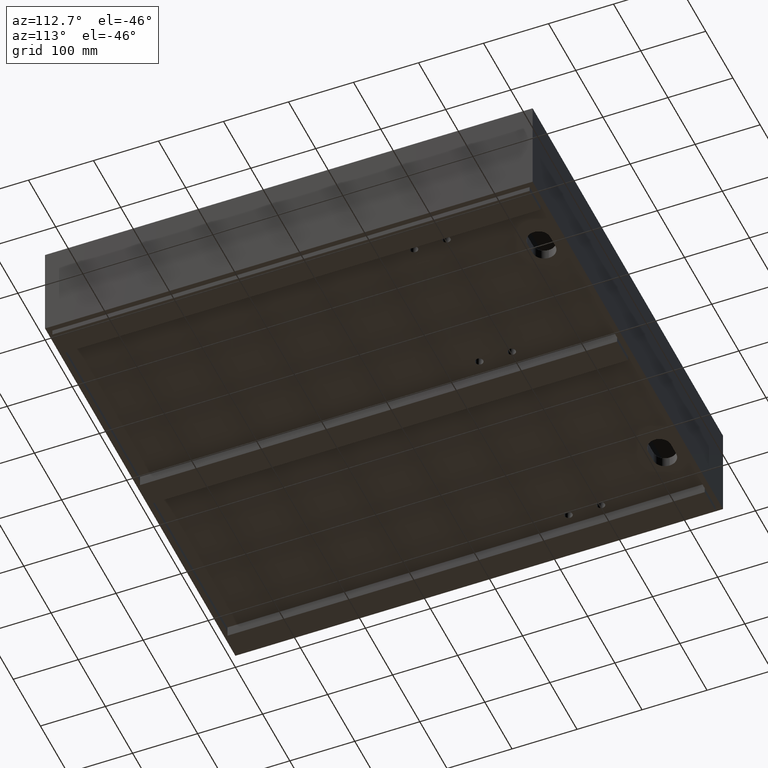
[diagram: clean part render]
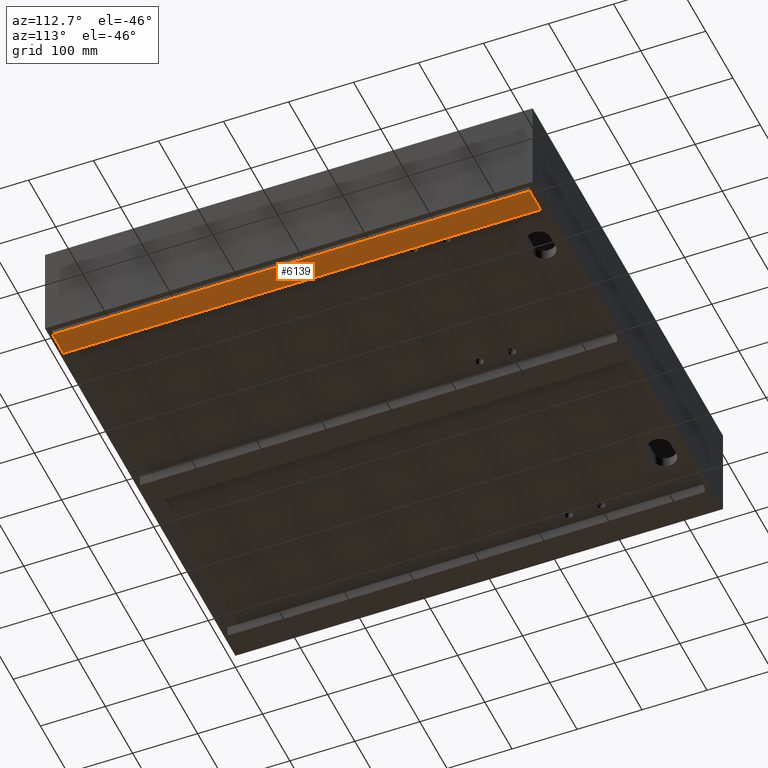
[diagram: same view with one face highlighted and labeled with its STEP entity id]
A machine part, auxiliary view. The second image highlights one B-rep face of the part: STEP entity #6139.
In plain terms, the highlighted planar face has unit normal (-0, 0, -1).
Its self-contained STEP definition (entity closure, byte-faithful):
#249 = DIRECTION ( 'NONE',  ( -3.025131269432479443E-16, -1.000000000000000000, 0.0000000000000000000 ) ) ;
#776 = CARTESIAN_POINT ( 'NONE',  ( 651.9999999999996589, 741.9999000000000251, -158.0000000000003126 ) ) ;
#987 = CARTESIAN_POINT ( 'NONE',  ( 692.0000000000000000, 741.9999000000000251, -158.0000000000003695 ) ) ;
#1201 = CARTESIAN_POINT ( 'NONE',  ( -1.110223024625156540E-13, 0.0000000000000000000, -157.9999999999998579 ) ) ;
#1369 = LINE ( 'NONE', #4809, #1370 ) ;
#1370 = VECTOR ( 'NONE', #8244, 1000.000000000000000 ) ;
#1872 = VERTEX_POINT ( 'NONE', #7781 ) ;
#2031 = ORIENTED_EDGE ( 'NONE', *, *, #7894, .T. ) ;
#2505 = DIRECTION ( 'NONE',  ( -1.000000000000000000, -4.336808689942012806E-17, 6.938893903907222461E-16 ) ) ;
#2623 = AXIS2_PLACEMENT_3D ( 'NONE', #1201, #4636, #8078 ) ;
#2715 = CARTESIAN_POINT ( 'NONE',  ( 651.9999999999996589, 8.000000000000007105, -158.0000000000003126 ) ) ;
#2943 = VERTEX_POINT ( 'NONE', #2715 ) ;
#3483 = EDGE_CURVE ( 'NONE', #2943, #10361, #4139, .T. ) ;
#4139 = LINE ( 'NONE', #7584, #5046 ) ;
#4544 = LINE ( 'NONE', #7977, #7698 ) ;
#4636 = DIRECTION ( 'NONE',  ( -6.938893903907222461E-16, 2.106967359159636023E-31, -1.000000000000000000 ) ) ;
#4809 = CARTESIAN_POINT ( 'NONE',  ( 692.0000000000000000, 741.9999000000000251, -158.0000000000003695 ) ) ;
#5046 = VECTOR ( 'NONE', #11017, 1000.000000000000000 ) ;
#5491 = FACE_OUTER_BOUND ( 'NONE', #7509, .T. ) ;
#6037 = VERTEX_POINT ( 'NONE', #987 ) ;
#6139 = ADVANCED_FACE ( 'NONE', ( #5491 ), #8919, .T. ) ;
#6783 = LINE ( 'NONE', #10221, #8039 ) ;
#6854 = ORIENTED_EDGE ( 'NONE', *, *, #3483, .T. ) ;
#7343 = EDGE_CURVE ( 'NONE', #10361, #6037, #1369, .T. ) ;
#7509 = EDGE_LOOP ( 'NONE', ( #8569, #2031, #6854, #10785 ) ) ;
#7584 = CARTESIAN_POINT ( 'NONE',  ( 651.9999999999996589, 741.9999000000000251, -158.0000000000003126 ) ) ;
#7698 = VECTOR ( 'NONE', #249, 1000.000000000000000 ) ;
#7781 = CARTESIAN_POINT ( 'NONE',  ( 691.9999999999997726, 8.000000000000007105, -158.0000000000003695 ) ) ;
#7894 = EDGE_CURVE ( 'NONE', #1872, #2943, #6783, .T. ) ;
#7977 = CARTESIAN_POINT ( 'NONE',  ( 692.0000000000000000, 741.9999000000000251, -158.0000000000003695 ) ) ;
#8039 = VECTOR ( 'NONE', #2505, 1000.000000000000000 ) ;
#8078 = DIRECTION ( 'NONE',  ( -1.000000000000000000, 1.229753415338546765E-33, 6.938893903907222461E-16 ) ) ;
#8244 = DIRECTION ( 'NONE',  ( 1.000000000000000000, -1.229753415338555489E-33, -6.938893903907184004E-16 ) ) ;
#8569 = ORIENTED_EDGE ( 'NONE', *, *, #9349, .T. ) ;
#8919 = PLANE ( 'NONE',  #2623 ) ;
#9349 = EDGE_CURVE ( 'NONE', #6037, #1872, #4544, .T. ) ;
#10221 = CARTESIAN_POINT ( 'NONE',  ( 691.9999999999997726, 8.000000000000007105, -158.0000000000003695 ) ) ;
#10361 = VERTEX_POINT ( 'NONE', #776 ) ;
#10785 = ORIENTED_EDGE ( 'NONE', *, *, #7343, .T. ) ;
#11017 = DIRECTION ( 'NONE',  ( -2.816593309960304926E-33, 1.000000000000000000, 0.0000000000000000000 ) ) ;